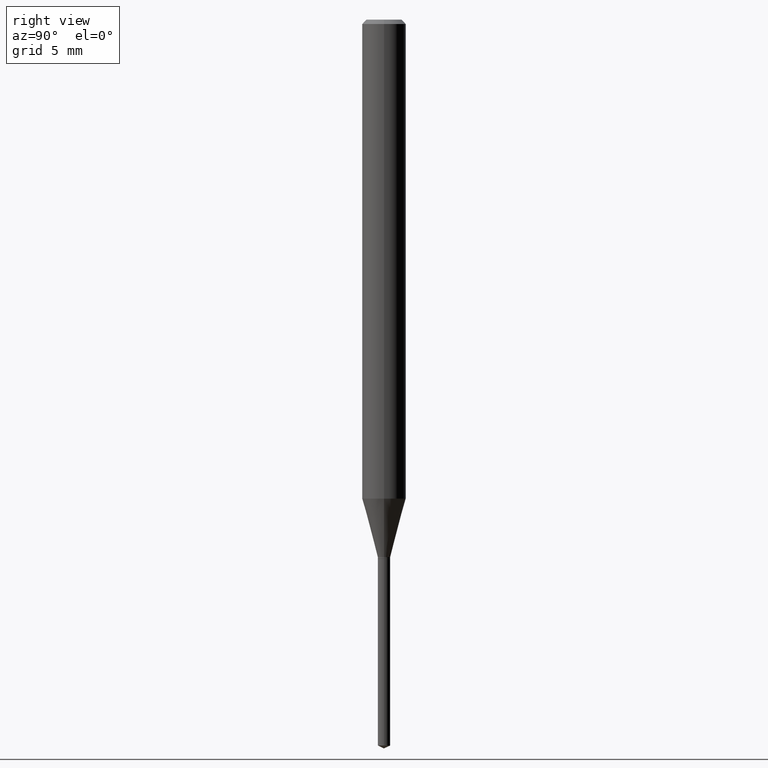
[diagram: clean part render]
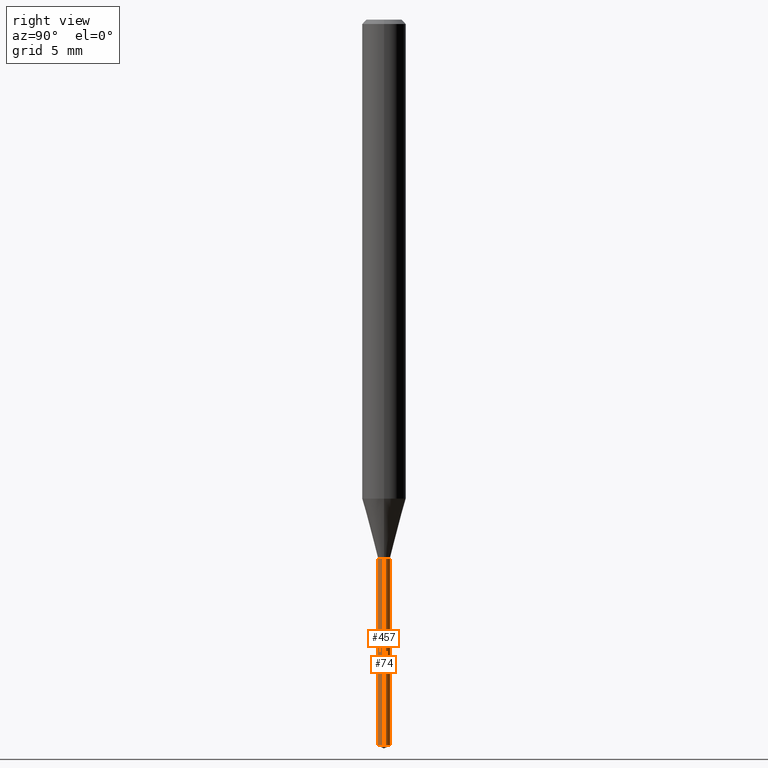
[diagram: same view with one multi-face feature highlighted, each face labeled with its STEP entity id]
A machine part, right view. The highlighted faces form ONE feature: a constant-radius fillet chain: 2 tangent blend faces with common blend radius 0.4254 mm. The faces share edges in the B-rep.
Their STEP definitions:
[1] entity #457 (Cylinder):
#6 = CARTESIAN_POINT ( 'NONE',  ( -0.01675000000000000100, -4.967024958052992573E-15, -1.456699999999999884 ) ) ;
#17 = AXIS2_PLACEMENT_3D ( 'NONE', #87, #267, #136 ) ;
#81 = CARTESIAN_POINT ( 'NONE',  ( 0.01675000000000000100, -6.962674890213296059E-15, -1.960689346725903892 ) ) ;
#87 = CARTESIAN_POINT ( 'NONE',  ( 3.562314409969888354E-29, -5.086040866292809657E-15, -1.456699999999999884 ) ) ;
#93 = EDGE_LOOP ( 'NONE', ( #165, #95, #279, #246 ) ) ;
#95 = ORIENTED_EDGE ( 'NONE', *, *, #187, .T. ) ;
#97 = LINE ( 'NONE', #444, #458 ) ;
#125 = VERTEX_POINT ( 'NONE', #155 ) ;
#136 = DIRECTION ( 'NONE',  ( 1.000000000000000000, -6.982962677686288799E-15, 0.000000000000000000 ) ) ;
#142 = DIRECTION ( 'NONE',  ( -2.445468806185136877E-29, 3.491481338843145188E-15, 1.000000000000000000 ) ) ;
#145 = EDGE_CURVE ( 'NONE', #197, #443, #186, .T. ) ;
#155 = CARTESIAN_POINT ( 'NONE',  ( 0.01675000000000000100, -5.203005491144055129E-15, -1.456699999999999884 ) ) ;
#162 = CARTESIAN_POINT ( 'NONE',  ( 4.794804636037711308E-29, -6.845710265362052164E-15, -1.960689346725903892 ) ) ;
#165 = ORIENTED_EDGE ( 'NONE', *, *, #145, .F. ) ;
#181 = CYLINDRICAL_SURFACE ( 'NONE', #484, 0.01675000000000000100 ) ;
#186 = LINE ( 'NONE', #6, #418 ) ;
#187 = EDGE_CURVE ( 'NONE', #197, #202, #404, .T. ) ;
#197 = VERTEX_POINT ( 'NONE', #468 ) ;
#201 = EDGE_CURVE ( 'NONE', #443, #125, #416, .T. ) ;
#202 = VERTEX_POINT ( 'NONE', #81 ) ;
#211 = FACE_OUTER_BOUND ( 'NONE', #93, .T. ) ;
#227 = DIRECTION ( 'NONE',  ( -2.445468806185136597E-29, 3.491481338843145583E-15, 1.000000000000000000 ) ) ;
#246 = ORIENTED_EDGE ( 'NONE', *, *, #201, .F. ) ;
#267 = DIRECTION ( 'NONE',  ( -2.445468806185136597E-29, 3.491481338843145583E-15, 1.000000000000000000 ) ) ;
#279 = ORIENTED_EDGE ( 'NONE', *, *, #479, .T. ) ;
#302 = DIRECTION ( 'NONE',  ( 1.000000000000000000, -6.982962677686288799E-15, 0.000000000000000000 ) ) ;
#324 = CARTESIAN_POINT ( 'NONE',  ( 3.562314409969888354E-29, -5.086040866292809657E-15, -1.456699999999999884 ) ) ;
#332 = DIRECTION ( 'NONE',  ( -2.445468806185136877E-29, 3.491481338843145188E-15, 1.000000000000000000 ) ) ;
#358 = DIRECTION ( 'NONE',  ( 1.000000000000000000, -6.982962677686288799E-15, 0.000000000000000000 ) ) ;
#382 = AXIS2_PLACEMENT_3D ( 'NONE', #162, #227, #302 ) ;
#404 = CIRCLE ( 'NONE', #382, 0.01675000000000000100 ) ;
#416 = CIRCLE ( 'NONE', #17, 0.01675000000000000100 ) ;
#418 = VECTOR ( 'NONE', #332, 39.37007874015748143 ) ;
#435 = CARTESIAN_POINT ( 'NONE',  ( -0.01675000000000000100, -5.846859657587614221E-15, -1.456699999999999884 ) ) ;
#443 = VERTEX_POINT ( 'NONE', #435 ) ;
#444 = CARTESIAN_POINT ( 'NONE',  ( 0.01675000000000000100, -5.203005491144055129E-15, -1.456699999999999884 ) ) ;
#457 = ADVANCED_FACE ( 'NONE', ( #211 ), #181, .T. ) ;
#458 = VECTOR ( 'NONE', #142, 39.37007874015748143 ) ;
#468 = CARTESIAN_POINT ( 'NONE',  ( -0.01675000000000000100, -6.726694357122235080E-15, -1.960689346725903892 ) ) ;
#479 = EDGE_CURVE ( 'NONE', #202, #125, #97, .T. ) ;
#480 = DIRECTION ( 'NONE',  ( -2.445468806185136597E-29, 3.491481338843145583E-15, 1.000000000000000000 ) ) ;
#484 = AXIS2_PLACEMENT_3D ( 'NONE', #324, #480, #358 ) ;
[2] entity #74 (Cylinder):
#4 = AXIS2_PLACEMENT_3D ( 'NONE', #34, #79, #190 ) ;
#6 = CARTESIAN_POINT ( 'NONE',  ( -0.01675000000000000100, -4.967024958052992573E-15, -1.456699999999999884 ) ) ;
#8 = FACE_OUTER_BOUND ( 'NONE', #213, .T. ) ;
#13 = ORIENTED_EDGE ( 'NONE', *, *, #221, .F. ) ;
#34 = CARTESIAN_POINT ( 'NONE',  ( 3.562314409969888354E-29, -5.086040866292809657E-15, -1.456699999999999884 ) ) ;
#74 = ADVANCED_FACE ( 'NONE', ( #8 ), #75, .T. ) ;
#75 = CYLINDRICAL_SURFACE ( 'NONE', #4, 0.01675000000000000100 ) ;
#79 = DIRECTION ( 'NONE',  ( -2.445468806185136597E-29, 3.491481338843145583E-15, 1.000000000000000000 ) ) ;
#81 = CARTESIAN_POINT ( 'NONE',  ( 0.01675000000000000100, -6.962674890213296059E-15, -1.960689346725903892 ) ) ;
#97 = LINE ( 'NONE', #444, #458 ) ;
#125 = VERTEX_POINT ( 'NONE', #155 ) ;
#139 = DIRECTION ( 'NONE',  ( 1.000000000000000000, -6.982962677686288799E-15, 0.000000000000000000 ) ) ;
#142 = DIRECTION ( 'NONE',  ( -2.445468806185136877E-29, 3.491481338843145188E-15, 1.000000000000000000 ) ) ;
#145 = EDGE_CURVE ( 'NONE', #197, #443, #186, .T. ) ;
#155 = CARTESIAN_POINT ( 'NONE',  ( 0.01675000000000000100, -5.203005491144055129E-15, -1.456699999999999884 ) ) ;
#177 = AXIS2_PLACEMENT_3D ( 'NONE', #431, #271, #386 ) ;
#186 = LINE ( 'NONE', #6, #418 ) ;
#190 = DIRECTION ( 'NONE',  ( 1.000000000000000000, -6.982962677686288799E-15, 0.000000000000000000 ) ) ;
#197 = VERTEX_POINT ( 'NONE', #468 ) ;
#202 = VERTEX_POINT ( 'NONE', #81 ) ;
#213 = EDGE_LOOP ( 'NONE', ( #307, #315, #13, #311 ) ) ;
#221 = EDGE_CURVE ( 'NONE', #125, #443, #284, .T. ) ;
#241 = AXIS2_PLACEMENT_3D ( 'NONE', #319, #285, #139 ) ;
#271 = DIRECTION ( 'NONE',  ( -2.445468806185136597E-29, 3.491481338843145583E-15, 1.000000000000000000 ) ) ;
#284 = CIRCLE ( 'NONE', #177, 0.01675000000000000100 ) ;
#285 = DIRECTION ( 'NONE',  ( -2.445468806185136597E-29, 3.491481338843145583E-15, 1.000000000000000000 ) ) ;
#307 = ORIENTED_EDGE ( 'NONE', *, *, #464, .T. ) ;
#311 = ORIENTED_EDGE ( 'NONE', *, *, #479, .F. ) ;
#315 = ORIENTED_EDGE ( 'NONE', *, *, #145, .T. ) ;
#319 = CARTESIAN_POINT ( 'NONE',  ( 4.794804636037711308E-29, -6.845710265362052164E-15, -1.960689346725903892 ) ) ;
#332 = DIRECTION ( 'NONE',  ( -2.445468806185136877E-29, 3.491481338843145188E-15, 1.000000000000000000 ) ) ;
#386 = DIRECTION ( 'NONE',  ( 1.000000000000000000, -6.982962677686288799E-15, 0.000000000000000000 ) ) ;
#418 = VECTOR ( 'NONE', #332, 39.37007874015748143 ) ;
#431 = CARTESIAN_POINT ( 'NONE',  ( 3.562314409969888354E-29, -5.086040866292809657E-15, -1.456699999999999884 ) ) ;
#435 = CARTESIAN_POINT ( 'NONE',  ( -0.01675000000000000100, -5.846859657587614221E-15, -1.456699999999999884 ) ) ;
#439 = CIRCLE ( 'NONE', #241, 0.01675000000000000100 ) ;
#443 = VERTEX_POINT ( 'NONE', #435 ) ;
#444 = CARTESIAN_POINT ( 'NONE',  ( 0.01675000000000000100, -5.203005491144055129E-15, -1.456699999999999884 ) ) ;
#458 = VECTOR ( 'NONE', #142, 39.37007874015748143 ) ;
#464 = EDGE_CURVE ( 'NONE', #202, #197, #439, .T. ) ;
#468 = CARTESIAN_POINT ( 'NONE',  ( -0.01675000000000000100, -6.726694357122235080E-15, -1.960689346725903892 ) ) ;
#479 = EDGE_CURVE ( 'NONE', #202, #125, #97, .T. ) ;